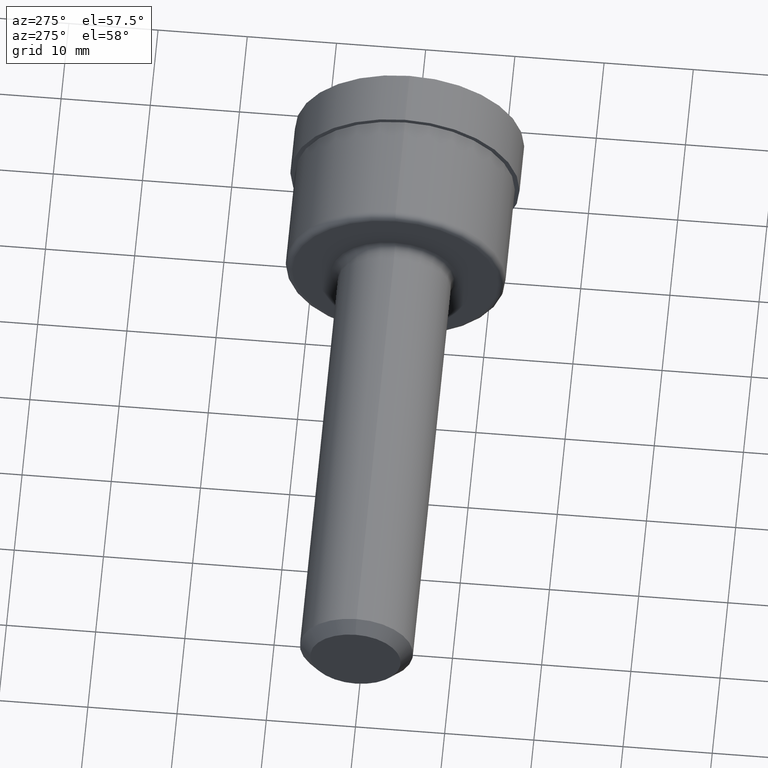
[diagram: clean part render]
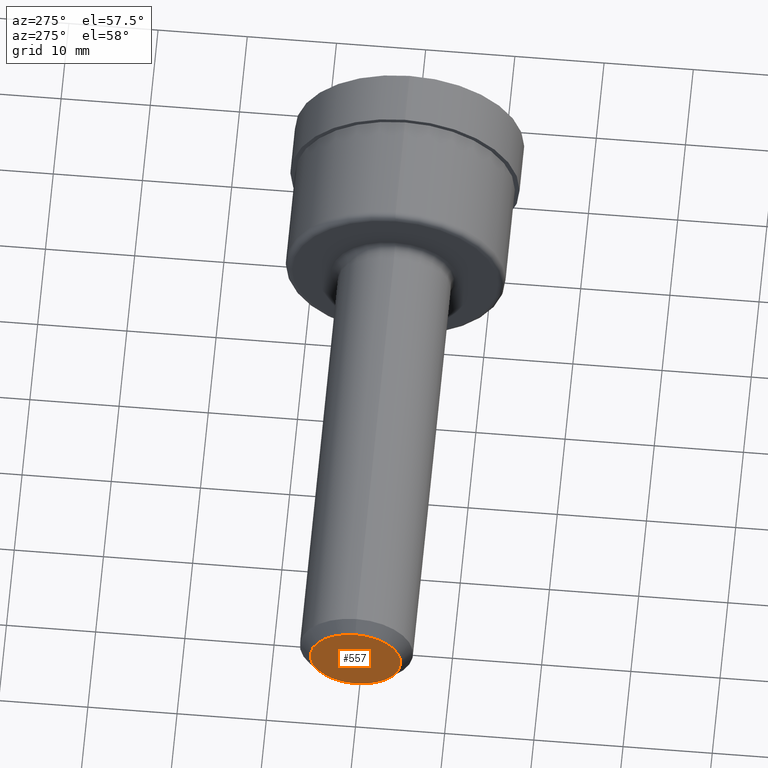
[diagram: same view with one face highlighted and labeled with its STEP entity id]
A machine part, auxiliary view. The second image highlights one B-rep face of the part: STEP entity #557.
In plain terms, the highlighted planar face has unit normal (1, 0, 0).
Its self-contained STEP definition (entity closure, byte-faithful):
#56 = DIRECTION ( 'NONE',  ( 1.000000000000000000, 0.000000000000000000, 0.000000000000000000 ) ) ;
#128 = ORIENTED_EDGE ( 'NONE', *, *, #151, .T. ) ;
#149 = FACE_OUTER_BOUND ( 'NONE', #645, .T. ) ;
#151 = EDGE_CURVE ( 'NONE', #522, #677, #541, .T. ) ;
#156 = CARTESIAN_POINT ( 'NONE',  ( 0.000000000000000000, 0.000000000000000000, -0.1999000000000001886 ) ) ;
#204 = DIRECTION ( 'NONE',  ( 0.000000000000000000, 0.000000000000000000, -1.000000000000000000 ) ) ;
#205 = AXIS2_PLACEMENT_3D ( 'NONE', #684, #56, #204 ) ;
#231 = AXIS2_PLACEMENT_3D ( 'NONE', #511, #286, #606 ) ;
#286 = DIRECTION ( 'NONE',  ( -1.000000000000000000, -0.000000000000000000, -0.000000000000000000 ) ) ;
#392 = CARTESIAN_POINT ( 'NONE',  ( 0.000000000000000000, 2.754230651282398413E-17, 0.1999000000000001886 ) ) ;
#447 = CIRCLE ( 'NONE', #527, 0.1999000000000001886 ) ;
#451 = CARTESIAN_POINT ( 'NONE',  ( 0.000000000000000000, 0.000000000000000000, 0.000000000000000000 ) ) ;
#511 = CARTESIAN_POINT ( 'NONE',  ( 0.000000000000000000, 0.000000000000000000, 0.000000000000000000 ) ) ;
#522 = VERTEX_POINT ( 'NONE', #156 ) ;
#527 = AXIS2_PLACEMENT_3D ( 'NONE', #451, #564, #601 ) ;
#541 = CIRCLE ( 'NONE', #231, 0.1999000000000001886 ) ;
#557 = ADVANCED_FACE ( 'NONE', ( #149 ), #638, .F. ) ;
#564 = DIRECTION ( 'NONE',  ( -1.000000000000000000, -0.000000000000000000, -0.000000000000000000 ) ) ;
#584 = EDGE_CURVE ( 'NONE', #677, #522, #447, .T. ) ;
#601 = DIRECTION ( 'NONE',  ( 0.000000000000000000, 0.000000000000000000, 1.000000000000000000 ) ) ;
#606 = DIRECTION ( 'NONE',  ( 0.000000000000000000, 0.000000000000000000, 1.000000000000000000 ) ) ;
#638 = PLANE ( 'NONE',  #205 ) ;
#645 = EDGE_LOOP ( 'NONE', ( #128, #674 ) ) ;
#674 = ORIENTED_EDGE ( 'NONE', *, *, #584, .T. ) ;
#677 = VERTEX_POINT ( 'NONE', #392 ) ;
#684 = CARTESIAN_POINT ( 'NONE',  ( 0.000000000000000000, 0.000000000000000000, 0.000000000000000000 ) ) ;